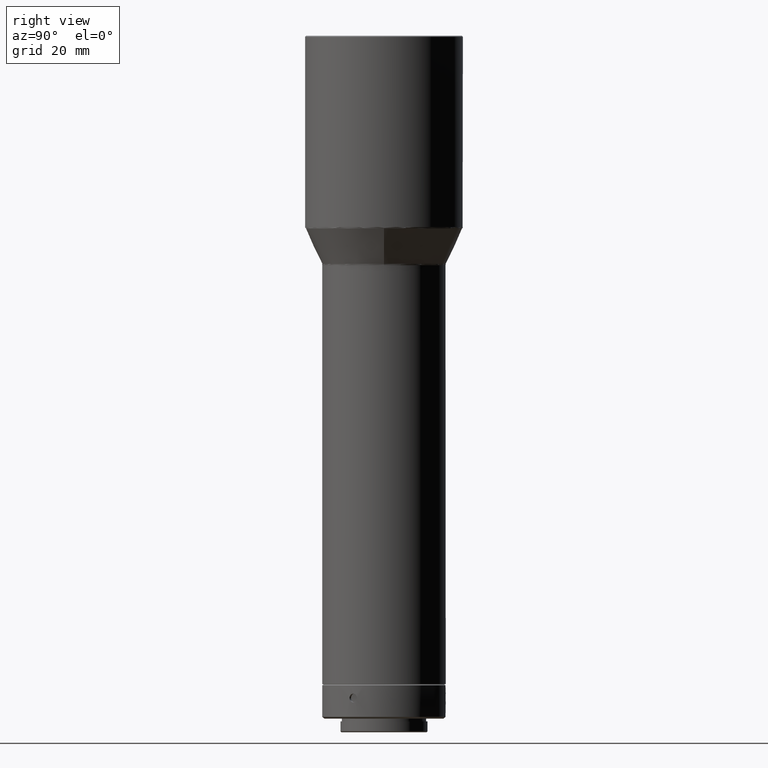
[diagram: clean part render]
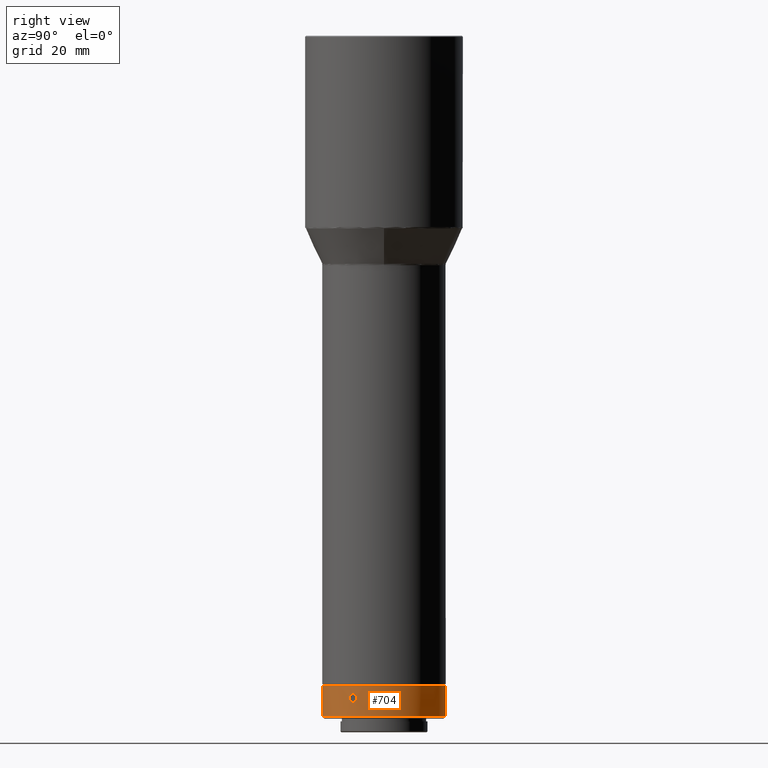
[diagram: same view with one face highlighted and labeled with its STEP entity id]
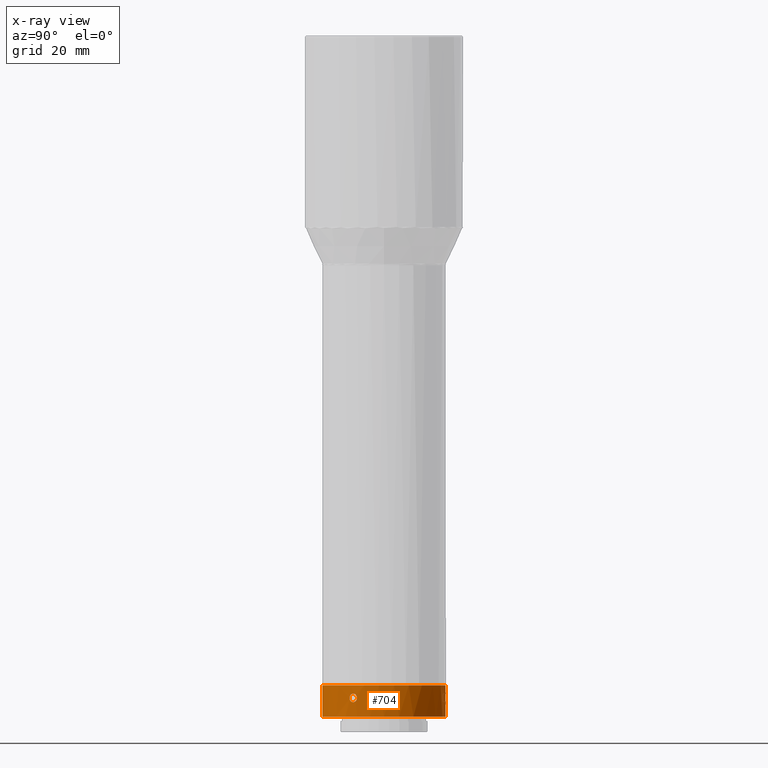
[diagram: x-ray of the same camera — body ghosted, the highlighted face saturated]
A machine part, right view. The second image highlights one B-rep face of the part: STEP entity #704.
The next image is the same camera in x-ray: the body ghosted, the highlighted face saturated — about 0% of this face is hidden behind the body in this view.
In plain terms, the highlighted cylindrical surface (bore or boss wall) has radius 18 mm, axis along (-0, 0, 1).
Its self-contained STEP definition (entity closure, byte-faithful):
#4 = CARTESIAN_POINT ( 'NONE',  ( 15.95885680708785515, -8.326356316898451126, -761.1510160424840024 ) ) ;
#10 = CARTESIAN_POINT ( 'NONE',  ( 14.94416663059029737, -10.03373538488436267, -760.4794710172558325 ) ) ;
#14 = CARTESIAN_POINT ( 'NONE',  ( 1.249999999999991340, 17.95654476785551523, -759.9866467607349705 ) ) ;
#18 = ORIENTED_EDGE ( 'NONE', *, *, #136, .T. ) ;
#33 = EDGE_CURVE ( 'NONE', #232, #232, #574, .T. ) ;
#36 = CARTESIAN_POINT ( 'NONE',  ( -15.66957007690076153, -8.859524101807469521, -761.4019583759026091 ) ) ;
#37 = CARTESIAN_POINT ( 'NONE',  ( 1.249999999999991340, 17.95654476785551523, -760.1518460000002051 ) ) ;
#38 = CARTESIAN_POINT ( 'NONE',  ( -14.92582376334304328, -10.06080439058551335, -759.9866492969530327 ) ) ;
#40 = CARTESIAN_POINT ( 'NONE',  ( -15.50648075862412156, -9.141971788833695101, -761.4017330273642301 ) ) ;
#45 = CARTESIAN_POINT ( 'NONE',  ( -15.74948706598771864, -8.716454752419810603, -761.3696309096973209 ) ) ;
#60 = CARTESIAN_POINT ( 'NONE',  ( -0.6291987904827288647, 17.98962862930883944, -761.2441421720308199 ) ) ;
#70 = CARTESIAN_POINT ( 'NONE',  ( -0.9991393837938823408, 17.97261919133770292, -760.9204781668031501 ) ) ;
#79 = CARTESIAN_POINT ( 'NONE',  ( 16.17582379988434127, -7.895740902226717317, -760.3170472896943011 ) ) ;
#85 = CARTESIAN_POINT ( 'NONE',  ( 15.01397497146081683, -9.928973643487909229, -760.7822719346070244 ) ) ;
#89 = FACE_BOUND ( 'NONE', #707, .T. ) ;
#97 = DIRECTION ( 'NONE',  ( -3.247486840701663975E-33, 1.417682489495849745E-17, 1.000000000000000000 ) ) ;
#100 = CARTESIAN_POINT ( 'NONE',  ( -16.10583412538210268, -8.037789467238122043, -759.5218396262730494 ) ) ;
#103 = CARTESIAN_POINT ( 'NONE',  ( -15.06517510034528762, -9.851589683955863208, -760.9204781668029227 ) ) ;
#106 = CARTESIAN_POINT ( 'NONE',  ( -16.17582393315551670, -7.895740629197095295, -759.9866467607351979 ) ) ;
#110 = CARTESIAN_POINT ( 'NONE',  ( -15.67042028344142679, -8.858020202463340098, -758.9019589727666926 ) ) ;
#115 = ORIENTED_EDGE ( 'NONE', *, *, #33, .T. ) ;
#121 = ORIENTED_EDGE ( 'NONE', *, *, #429, .F. ) ;
#123 = CARTESIAN_POINT ( 'NONE',  ( 0.7685930773333918831, 17.98395353626938231, -759.1526765139835788 ) ) ;
#125 = B_SPLINE_CURVE_WITH_KNOTS ( 'NONE', 3,
 ( #719, #14, #475, #776, #186, #123, #331, #452, #792, #594, #845, #731, #194, #521, #200, #325, #402, #724, #258, #387, #70, #335, #60, #590, #461, #131, #395, #563, #686, #148, #291, #806, #759, #487 ),
 .UNSPECIFIED., .T., .F.,
 ( 4, 2, 2, 2, 2, 2, 2, 2, 2, 2, 2, 2, 2, 2, 2, 2, 4 ),
 ( 0.000000000000000000, 0.0004885519476059284501, 0.0009771038952118569001, 0.001465655842817785567, 0.001954207790423713800, 0.002442759738029642250, 0.002931311685635571134, 0.003419863633241498717, 0.003908415580847426733, 0.004396967528453354750, 0.004885519476059283633, 0.005374071423665211650, 0.005862623371271139666, 0.006351175318877068550, 0.006839727266482996566, 0.007328279214088925450, 0.007816831161694853466 ),
 .UNSPECIFIED. ) ;
#131 = CARTESIAN_POINT ( 'NONE',  ( 0.1622121008445755463, 18.00000780388024424, -761.4019583759028365 ) ) ;
#136 = EDGE_CURVE ( 'NONE', #638, #638, #303, .T. ) ;
#145 = CARTESIAN_POINT ( 'NONE',  ( 14.94412286735163775, -10.03380008369036958, -759.8245469706282620 ) ) ;
#148 = CARTESIAN_POINT ( 'NONE',  ( 1.000011374074571524, 17.97258026762708383, -760.9197661707627276 ) ) ;
#151 = CARTESIAN_POINT ( 'NONE',  ( 16.06471715756163832, -8.120254114432402304, -759.3839268980901807 ) ) ;
#157 = EDGE_LOOP ( 'NONE', ( #115 ) ) ;
#169 = CARTESIAN_POINT ( 'NONE',  ( -16.17582393315550959, -7.895740629197107729, -760.1518460000003188 ) ) ;
#173 = VERTEX_POINT ( 'NONE', #577 ) ;
#174 = AXIS2_PLACEMENT_3D ( 'NONE', #346, #289, #224 ) ;
#186 = CARTESIAN_POINT ( 'NONE',  ( 0.9991402188564658671, 17.97261914514088588, -759.3832148769149626 ) ) ;
#194 = CARTESIAN_POINT ( 'NONE',  ( -0.7665056236648897237, 17.98405219532852684, -759.1507499321256773 ) ) ;
#196 = CARTESIAN_POINT ( 'NONE',  ( 16.10573125108190951, -8.037996199706904932, -759.5214214048878603 ) ) ;
#200 = CARTESIAN_POINT ( 'NONE',  ( -1.091756721072176584, 17.96697050981527966, -759.5214214048879739 ) ) ;
#203 = CARTESIAN_POINT ( 'NONE',  ( 16.10583377797237148, -8.037790164337506482, -760.7818536652779358 ) ) ;
#215 = CARTESIAN_POINT ( 'NONE',  ( 16.06431448413912833, -8.121029507381859247, -760.9204781668029227 ) ) ;
#223 = B_SPLINE_CURVE_WITH_KNOTS ( 'NONE', 3,
 ( #504, #106, #697, #100, #309, #371, #636, #832, #110, #235, #241, #436, #700, #769, #507, #826, #38, #362, #441, #372, #103, #368, #639, #633, #40, #36, #45, #432, #575, #364, #837, #244, #568, #511 ),
 .UNSPECIFIED., .T., .F.,
 ( 4, 2, 2, 2, 2, 2, 2, 2, 2, 2, 2, 2, 2, 2, 2, 2, 4 ),
 ( 0.000000000000000000, 0.0004885519476059302932, 0.0009771038952118605864, 0.001465655842817790988, 0.001954207790423721173, 0.002442759738029651358, 0.002931311685635581976, 0.003419863633241512161, 0.003908415580847442346, 0.004396967528453372964, 0.004885519476059302715, 0.005374071423665233334, 0.005862623371271163952, 0.006351175318877093703, 0.006839727266483024322, 0.007328279214088954073, 0.007816831161694884691 ),
 .UNSPECIFIED. ) ;
#224 = DIRECTION ( 'NONE',  ( 0.000000000000000000, -1.000000000000000000, 0.000000000000000000 ) ) ;
#226 = FACE_BOUND ( 'NONE', #256, .T. ) ;
#232 = VERTEX_POINT ( 'NONE', #499 ) ;
#235 = CARTESIAN_POINT ( 'NONE',  ( -15.50735788173640906, -9.140483865457488477, -758.9017336239675160 ) ) ;
#241 = CARTESIAN_POINT ( 'NONE',  ( -15.42341458922621023, -9.281228838265972669, -758.9340611631306501 ) ) ;
#244 = CARTESIAN_POINT ( 'NONE',  ( -16.16155305345585447, -7.925160248036703159, -760.4794710172558325 ) ) ;
#251 = ORIENTED_EDGE ( 'NONE', *, *, #423, .T. ) ;
#256 = EDGE_LOOP ( 'NONE', ( #18 ) ) ;
#258 = CARTESIAN_POINT ( 'NONE',  ( -1.217463806281648075, 17.95889011854546524, -760.4791468894959507 ) ) ;
#276 = CARTESIAN_POINT ( 'NONE',  ( 15.26487564935877828, -9.539717018441033147, -759.0595501845232320 ) ) ;
#289 = DIRECTION ( 'NONE',  ( -3.247486840701663975E-33, 1.417682489495849745E-17, 1.000000000000000000 ) ) ;
#291 = CARTESIAN_POINT ( 'NONE',  ( 1.091755923036134446, 17.96697055881274352, -760.7822719346069107 ) ) ;
#299 = DIRECTION ( 'NONE',  ( -1.000000000000000000, 1.387778780781446662E-16, 0.000000000000000000 ) ) ;
#303 = B_SPLINE_CURVE_WITH_KNOTS ( 'NONE', 3,
 ( #419, #591, #145, #789, #808, #733, #276, #540, #478, #726, #399, #351, #411, #151, #196, #669, #675, #79, #471, #203, #215, #4, #464, #338, #611, #744, #851, #604, #552, #681, #85, #10, #663, #616 ),
 .UNSPECIFIED., .T., .F.,
 ( 4, 2, 2, 2, 2, 2, 2, 2, 2, 2, 2, 2, 2, 2, 2, 2, 4 ),
 ( 0.000000000000000000, 0.0004885519476059288838, 0.0009771038952118577675, 0.001465655842817786651, 0.001954207790423715535, 0.002442759738029644419, 0.002931311685635573303, 0.003419863633241502186, 0.003908415580847431070, 0.004396967528453359954, 0.004885519476059288838, 0.005374071423665217721, 0.005862623371271146605, 0.006351175318877075489, 0.006839727266483004373, 0.007328279214088933256, 0.007816831161694862140 ),
 .UNSPECIFIED. ) ;
#309 = CARTESIAN_POINT ( 'NONE',  ( -16.06431486166293610, -8.121028761097802473, -759.3832148769151900 ) ) ;
#325 = CARTESIAN_POINT ( 'NONE',  ( -1.217386932848438352, 17.95889559784531642, -759.8242227959093498 ) ) ;
#326 = AXIS2_PLACEMENT_3D ( 'NONE', #543, #360, #741 ) ;
#329 = EDGE_LOOP ( 'NONE', ( #121 ) ) ;
#331 = CARTESIAN_POINT ( 'NONE',  ( 0.6291994582050498552, 17.98962860717566770, -759.0595501845231183 ) ) ;
#335 = CARTESIAN_POINT ( 'NONE',  ( -0.7685923121488426046, 17.98395356874549478, -761.1510160424842297 ) ) ;
#338 = CARTESIAN_POINT ( 'NONE',  ( 15.75062854503685550, -8.714374892937765793, -761.3688613772538929 ) ) ;
#346 = CARTESIAN_POINT ( 'NONE',  ( -2.172256618429164292E-15, -2.114854442793123623E-14, -765.6518460000000914 ) ) ;
#351 = CARTESIAN_POINT ( 'NONE',  ( 15.89389229175803742, -8.450273022654959831, -759.0591703457098447 ) ) ;
#360 = DIRECTION ( 'NONE',  ( -3.247486840701663975E-33, 1.417682489495849745E-17, 1.000000000000000000 ) ) ;
#362 = CARTESIAN_POINT ( 'NONE',  ( -14.92582410297037931, -10.06080388672740256, -760.3170472896943011 ) ) ;
#364 = CARTESIAN_POINT ( 'NONE',  ( -16.06471677035730750, -8.120254879791552582, -760.9197661707626139 ) ) ;
#368 = CARTESIAN_POINT ( 'NONE',  ( -15.19026449493903286, -9.657597251847063191, -761.1510160424840024 ) ) ;
#371 = CARTESIAN_POINT ( 'NONE',  ( -15.95885716155510892, -8.326355637990912939, -759.1526765139832378 ) ) ;
#372 = CARTESIAN_POINT ( 'NONE',  ( -15.01384736159118383, -9.929166118684818798, -760.7818536652779358 ) ) ;
#378 = CARTESIAN_POINT ( 'NONE',  ( 14.92582393315538347, -10.06080413865841727, -760.1518460000003188 ) ) ;
#387 = CARTESIAN_POINT ( 'NONE',  ( -1.091986416381327318, 17.96695628302229863, -760.7818536652781631 ) ) ;
#395 = CARTESIAN_POINT ( 'NONE',  ( 0.3260722864606774296, 17.99768327192968798, -761.3696309096974346 ) ) ;
#399 = CARTESIAN_POINT ( 'NONE',  ( 15.74948724688817236, -8.716454428236435348, -758.9340611631306501 ) ) ;
#400 = ORIENTED_EDGE ( 'NONE', *, *, #619, .T. ) ;
#402 = CARTESIAN_POINT ( 'NONE',  ( -1.250000303081699959, 17.95654474675724899, -759.9866492969530327 ) ) ;
#411 = CARTESIAN_POINT ( 'NONE',  ( 15.95789887597217493, -8.328212755427065517, -759.1507499321263595 ) ) ;
#419 = CARTESIAN_POINT ( 'NONE',  ( 14.92582393315538347, -10.06080413865841727, -760.1518460000003188 ) ) ;
#423 = EDGE_CURVE ( 'NONE', #839, #839, #223, .T. ) ;
#426 = FACE_BOUND ( 'NONE', #485, .T. ) ;
#429 = EDGE_CURVE ( 'NONE', #173, #173, #488, .T. ) ;
#432 = CARTESIAN_POINT ( 'NONE',  ( -15.89389197149337285, -8.450273622267786777, -761.2445220156610048 ) ) ;
#436 = CARTESIAN_POINT ( 'NONE',  ( -15.26509725241253790, -9.539377978348639431, -759.0591703457098447 ) ) ;
#441 = CARTESIAN_POINT ( 'NONE',  ( -14.94412316329298918, -10.03379964370064314, -760.4791468894953823 ) ) ;
#452 = CARTESIAN_POINT ( 'NONE',  ( 0.3284446131915312317, 17.99763188640061529, -758.9348306990362971 ) ) ;
#461 = CARTESIAN_POINT ( 'NONE',  ( -0.1639394304986114270, 17.99999215467990155, -761.4017330273642301 ) ) ;
#464 = CARTESIAN_POINT ( 'NONE',  ( 15.89407479287065250, -8.449912178065989821, -761.2441421720308199 ) ) ;
#471 = CARTESIAN_POINT ( 'NONE',  ( 16.16158696957449692, -7.925090474844852295, -760.4791468894953823 ) ) ;
#475 = CARTESIAN_POINT ( 'NONE',  ( 1.217464335294312638, 17.95889008224763117, -759.8245469706280346 ) ) ;
#478 = CARTESIAN_POINT ( 'NONE',  ( 15.50648066428973770, -9.141971952207539331, -758.9019589727666926 ) ) ;
#485 = EDGE_LOOP ( 'NONE', ( #251 ) ) ;
#487 = CARTESIAN_POINT ( 'NONE',  ( 1.249999999999991562, 17.95654476785551878, -760.1518460000000914 ) ) ;
#488 = CIRCLE ( 'NONE', #834, 17.99999999999998224 ) ;
#499 = CARTESIAN_POINT ( 'NONE',  ( -2.172256618429164292E-15, -18.00000000000002132, -765.6518460000000914 ) ) ;
#504 = CARTESIAN_POINT ( 'NONE',  ( -16.17582393315550959, -7.895740629197105953, -760.1518460000003188 ) ) ;
#505 = VERTEX_POINT ( 'NONE', #37 ) ;
#507 = CARTESIAN_POINT ( 'NONE',  ( -15.01397453000992144, -9.928974310108401369, -759.5214214048878603 ) ) ;
#511 = CARTESIAN_POINT ( 'NONE',  ( -16.17582393315550959, -7.895740629197105953, -760.1518460000003188 ) ) ;
#521 = CARTESIAN_POINT ( 'NONE',  ( -1.000012230497474786, 17.97258022027628499, -759.3839268980905217 ) ) ;
#540 = CARTESIAN_POINT ( 'NONE',  ( 15.42218411498790687, -9.283257321960553199, -758.9348306990361834 ) ) ;
#543 = CARTESIAN_POINT ( 'NONE',  ( -2.172256618429164292E-15, -2.101386459142912902E-14, -756.1518460000002051 ) ) ;
#552 = CARTESIAN_POINT ( 'NONE',  ( 15.19139366244525391, -9.655838794076673892, -761.1529426175252411 ) ) ;
#563 = CARTESIAN_POINT ( 'NONE',  ( 0.6287943599332035394, 17.98965102345265876, -761.2445220156608912 ) ) ;
#568 = CARTESIAN_POINT ( 'NONE',  ( -16.17582393315550604, -7.895740629197118388, -760.3170452392654397 ) ) ;
#574 = CIRCLE ( 'NONE', #174, 18.00000000000000355 ) ;
#575 = CARTESIAN_POINT ( 'NONE',  ( -15.95789852174033641, -8.328213433529167986, -761.1529426175252411 ) ) ;
#577 = CARTESIAN_POINT ( 'NONE',  ( -17.99999999999998579, -1.852011583349101483E-14, -756.4518460000001596 ) ) ;
#590 = CARTESIAN_POINT ( 'NONE',  ( -0.3284442371330705823, 17.99763189204310621, -761.3688613772536655 ) ) ;
#591 = CARTESIAN_POINT ( 'NONE',  ( 14.92582393315537281, -10.06080413865842615, -759.9866467607351979 ) ) ;
#594 = CARTESIAN_POINT ( 'NONE',  ( -0.1622122895000149556, 18.00000780388928234, -758.9017336239679707 ) ) ;
#604 = CARTESIAN_POINT ( 'NONE',  ( 15.26509761156014200, -9.539377401184886196, -761.2445220156610048 ) ) ;
#611 = CARTESIAN_POINT ( 'NONE',  ( 15.67042018912271217, -8.858020365846215327, -761.4017330273642301 ) ) ;
#613 = FACE_OUTER_BOUND ( 'NONE', #157, .T. ) ;
#616 = CARTESIAN_POINT ( 'NONE',  ( 14.92582393315538347, -10.06080413865841727, -760.1518460000003188 ) ) ;
#619 = EDGE_CURVE ( 'NONE', #505, #505, #125, .T. ) ;
#633 = CARTESIAN_POINT ( 'NONE',  ( -15.42218430790383898, -9.283256999105358176, -761.3688613772538929 ) ) ;
#636 = CARTESIAN_POINT ( 'NONE',  ( -15.89407510756407227, -8.449911588734648760, -759.0595501845232320 ) ) ;
#638 = VERTEX_POINT ( 'NONE', #378 ) ;
#639 = CARTESIAN_POINT ( 'NONE',  ( -15.26487600238798059, -9.539716451242863826, -761.2441421720308199 ) ) ;
#663 = CARTESIAN_POINT ( 'NONE',  ( 14.92582393315539768, -10.06080413865840839, -760.3170452392654397 ) ) ;
#669 = CARTESIAN_POINT ( 'NONE',  ( 16.16155327807073760, -7.925159788840839603, -759.8242227959091224 ) ) ;
#675 = CARTESIAN_POINT ( 'NONE',  ( 16.17582406642459958, -7.895740356171756957, -759.9866492969530327 ) ) ;
#681 = CARTESIAN_POINT ( 'NONE',  ( 15.06470539628269911, -9.852325387835547232, -760.9197661707626139 ) ) ;
#686 = CARTESIAN_POINT ( 'NONE',  ( 0.7665048592950627349, 17.98405222760582944, -761.1529426175250137 ) ) ;
#695 = CARTESIAN_POINT ( 'NONE',  ( -2.172256618429164292E-15, -2.101811763889761389E-14, -756.4518460000001596 ) ) ;
#696 = CYLINDRICAL_SURFACE ( 'NONE', #326, 18.00000000000000355 ) ;
#697 = CARTESIAN_POINT ( 'NONE',  ( -16.16158720264611759, -7.925089998557266036, -759.8245469706282620 ) ) ;
#700 = CARTESIAN_POINT ( 'NONE',  ( -15.19139325230753101, -9.655839439901493293, -759.1507499321263595 ) ) ;
#704 = ADVANCED_FACE ( 'NONE', ( #613, #226, #426, #820, #89 ), #696, .T. ) ;
#707 = EDGE_LOOP ( 'NONE', ( #400 ) ) ;
#719 = CARTESIAN_POINT ( 'NONE',  ( 1.249999999999991562, 17.95654476785551878, -760.1518460000000914 ) ) ;
#724 = CARTESIAN_POINT ( 'NONE',  ( -1.249999696914077640, 17.95654478895409767, -760.3170472896944148 ) ) ;
#726 = CARTESIAN_POINT ( 'NONE',  ( 15.66957017123617568, -8.859523938431811629, -758.9017336239675160 ) ) ;
#731 = CARTESIAN_POINT ( 'NONE',  ( -0.6287950393457109044, 17.98965100100356906, -759.0591703457101858 ) ) ;
#733 = CARTESIAN_POINT ( 'NONE',  ( 15.19026408422148045, -9.657597898278478254, -759.1526765139832378 ) ) ;
#741 = DIRECTION ( 'NONE',  ( 0.000000000000000000, -1.000000000000000000, 0.000000000000000000 ) ) ;
#744 = CARTESIAN_POINT ( 'NONE',  ( 15.50735797605616462, -9.140483702072781824, -761.4019583759026091 ) ) ;
#759 = CARTESIAN_POINT ( 'NONE',  ( 1.249999999999991784, 17.95654476785551878, -760.3170452392652123 ) ) ;
#769 = CARTESIAN_POINT ( 'NONE',  ( -15.06470492706440645, -9.852326105843909332, -759.3839268980901807 ) ) ;
#776 = CARTESIAN_POINT ( 'NONE',  ( 1.091987193791646549, 17.96695623533827302, -759.5218396262728220 ) ) ;
#789 = CARTESIAN_POINT ( 'NONE',  ( 15.01384693159025829, -9.929166768100150975, -759.5218396262730494 ) ) ;
#792 = CARTESIAN_POINT ( 'NONE',  ( 0.1639396191514392032, 17.99999215467086700, -758.9019589727664652 ) ) ;
#806 = CARTESIAN_POINT ( 'NONE',  ( 1.217386422865418760, 17.95889563292105962, -760.4794710172559462 ) ) ;
#808 = CARTESIAN_POINT ( 'NONE',  ( 15.06517464280623742, -9.851590384043086956, -759.3832148769151900 ) ) ;
#820 = FACE_OUTER_BOUND ( 'NONE', #329, .T. ) ;
#826 = CARTESIAN_POINT ( 'NONE',  ( -14.94416634522246667, -10.03373580900450435, -759.8242227959091224 ) ) ;
#832 = CARTESIAN_POINT ( 'NONE',  ( -15.75062872817969684, -8.714374564440072746, -758.9348306990361834 ) ) ;
#834 = AXIS2_PLACEMENT_3D ( 'NONE', #695, #97, #299 ) ;
#837 = CARTESIAN_POINT ( 'NONE',  ( -16.10573089449708206, -8.037996915324839620, -760.7822719346070244 ) ) ;
#839 = VERTEX_POINT ( 'NONE', #169 ) ;
#845 = CARTESIAN_POINT ( 'NONE',  ( -0.3260726576621960082, 17.99768326650238137, -758.9340611631308775 ) ) ;
#851 = CARTESIAN_POINT ( 'NONE',  ( 15.42341477952702178, -9.281228519509884478, -761.3696309096973209 ) ) ;